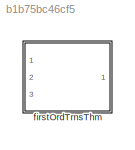
MODEL slx_b1b75bc46cf5
KIND library
CONFIG AbsTol = auto
CONFIG EnableMultiTasking = off
CONFIG FixedStep = auto
CONFIG MaxStep = auto
CONFIG MinStep = auto
CONFIG RelTol = 1e-3
CONFIG SampleTimeConstraint = Unconstrained
CONFIG SolverName = VariableStepAuto
CONFIG StartTime = 0.0
CONFIG StopTime = 10.0
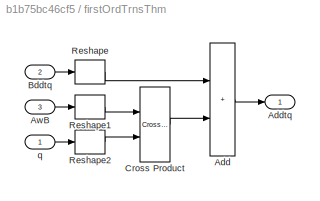
BLOCK [SubSystem] firstOrdTrnsThm
  Ports = [3, 1]
  RequestExecContextInheritance = off
BLOCK [Sum] firstOrdTrnsThm/Add
  IconShape = rectangular
  Ports = [2, 1]
BLOCK [Outport] firstOrdTrnsThm/Addtq
  PortDimensions = 3
  VectorParamsAs1DForOutWhenUnconnected = off
BLOCK [Inport] firstOrdTrnsThm/AwB
  Port = 3
  PortDimensions = 3
BLOCK [Inport] firstOrdTrnsThm/Bddtq
  Port = 2
  PortDimensions = 3
BLOCK [Reference] firstOrdTrnsThm/Cross Product  REF=vrlib/Utilities/Cross Product
  Ports = [2, 1]
  SourceBlock = vrlib/Utilities/Cross Product
  SourceProductBaseCode = SL
  SourceType = Cross Product
BLOCK [Reshape] firstOrdTrnsThm/Reshape
  OutputDimensionality = Column vector (2-D)
  Ports = [1, 1]
BLOCK [Reshape] firstOrdTrnsThm/Reshape1
  OutputDimensionality = Column vector (2-D)
  Ports = [1, 1]
BLOCK [Reshape] firstOrdTrnsThm/Reshape2
  OutputDimensionality = Column vector (2-D)
  Ports = [1, 1]
BLOCK [Inport] firstOrdTrnsThm/q
  PortDimensions = 3
LINE firstOrdTrnsThm/Add:1 -> firstOrdTrnsThm/Addtq:1
LINE firstOrdTrnsThm/AwB:1 -> firstOrdTrnsThm/Reshape1:1
LINE firstOrdTrnsThm/Bddtq:1 -> firstOrdTrnsThm/Reshape:1
LINE firstOrdTrnsThm/Cross Product:1 -> firstOrdTrnsThm/Add:2
LINE firstOrdTrnsThm/Reshape1:1 -> firstOrdTrnsThm/Cross Product:1
LINE firstOrdTrnsThm/Reshape2:1 -> firstOrdTrnsThm/Cross Product:2
LINE firstOrdTrnsThm/Reshape:1 -> firstOrdTrnsThm/Add:1
LINE firstOrdTrnsThm/q:1 -> firstOrdTrnsThm/Reshape2:1
